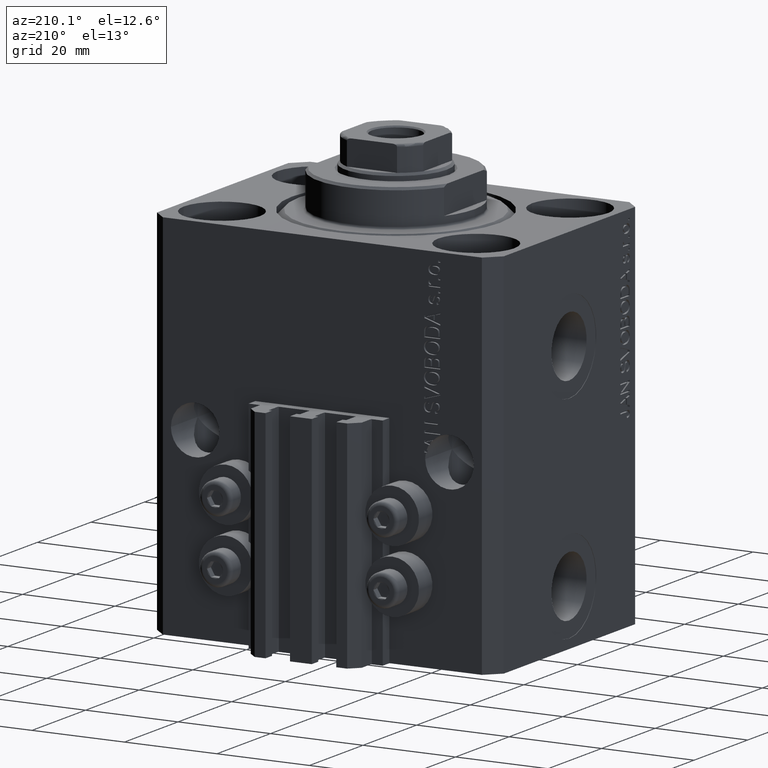
[diagram: clean part render]
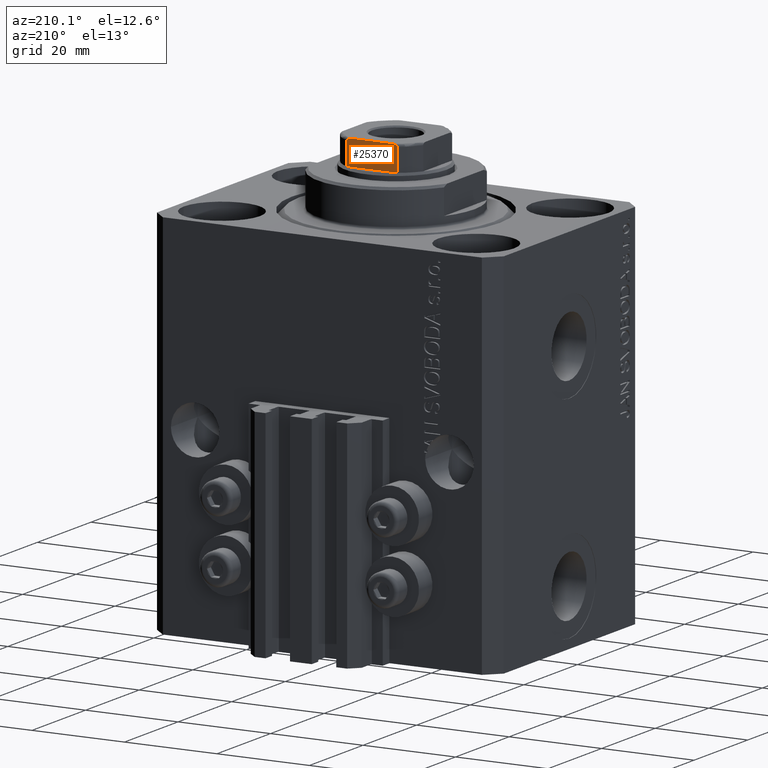
[diagram: same view with one face highlighted and labeled with its STEP entity id]
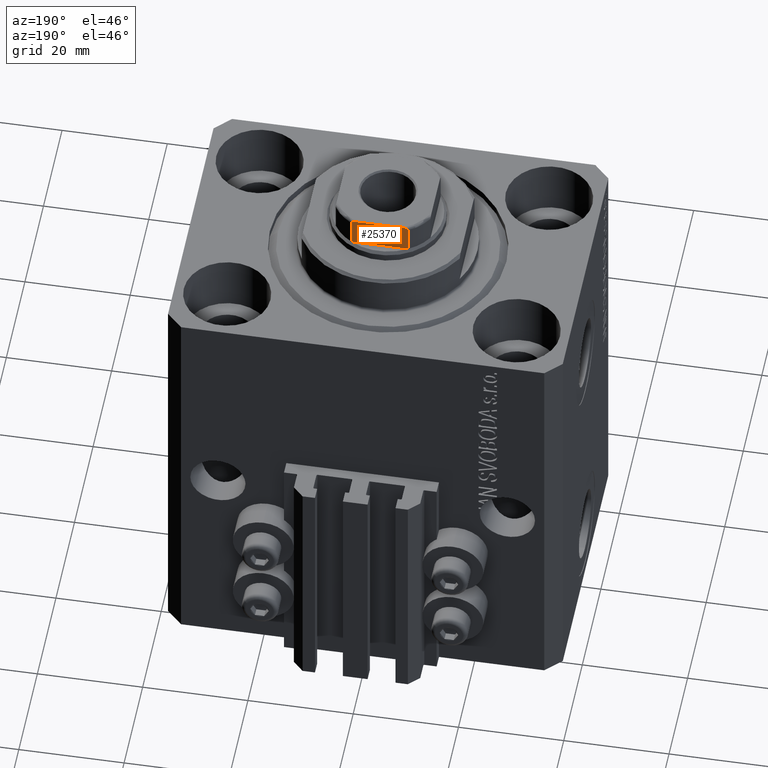
[diagram: same view with one face highlighted and labeled with its STEP entity id]
A machine part, auxiliary view. The second image highlights one B-rep face of the part: STEP entity #25370.
A second angle (auxiliary view) of the same face is appended — the face is thin or edge-on in the first view.
In plain terms, the highlighted planar face has unit normal (0, -1, 0).
Its self-contained STEP definition (entity closure, byte-faithful):
#1358 = DIRECTION ( 'NONE',  ( -1.000000000000000000, -0.000000000000000000, -0.000000000000000000 ) ) ;
#1364 = PLANE ( 'NONE',  #28104 ) ;
#1536 = CARTESIAN_POINT ( 'NONE',  ( 4.358898943540677529, 8.999999999999998224, 85.00000000000000000 ) ) ;
#1599 = LINE ( 'NONE', #22920, #23425 ) ;
#3083 = VERTEX_POINT ( 'NONE', #46762 ) ;
#5180 = B_SPLINE_CURVE_WITH_KNOTS ( 'NONE', 3,
 ( #1536, #12081, #30299, #24708, #39304, #37711, #41303, #12556, #41546, #8957 ),
 .UNSPECIFIED., .F., .F.,
 ( 4, 2, 2, 2, 4 ),
 ( 8.673617379884035472E-19, 0.0006221106941440978245, 0.0009331660412161529167, 0.001088693714752179487, 0.001244221388288205840 ),
 .UNSPECIFIED. ) ;
#6763 = VERTEX_POINT ( 'NONE', #38932 ) ;
#7410 = CARTESIAN_POINT ( 'NONE',  ( -4.778533838065926354, 9.000000000000000000, 84.97782914764695761 ) ) ;
#7645 = CARTESIAN_POINT ( 'NONE',  ( -5.077896145217240864, 8.999999999999998224, 84.87730167760669531 ) ) ;
#8120 = CARTESIAN_POINT ( 'NONE',  ( -4.569278586016991106, 8.999999999999996447, 84.99999999999998579 ) ) ;
#8764 = EDGE_CURVE ( 'NONE', #18246, #6763, #1599, .T. ) ;
#8957 = CARTESIAN_POINT ( 'NONE',  ( 5.408326913195989682, 8.999999999999998224, 84.50000000000000000 ) ) ;
#10267 = CARTESIAN_POINT ( 'NONE',  ( 5.408326913195989682, 8.999999999999998224, 79.50000000000000000 ) ) ;
#11244 = CARTESIAN_POINT ( 'NONE',  ( -5.174818616237127245, 8.999999999999998224, 84.83252188465333177 ) ) ;
#11594 = ORIENTED_EDGE ( 'NONE', *, *, #21219, .T. ) ;
#11718 = CARTESIAN_POINT ( 'NONE',  ( -5.390954572107325760, 8.999999999999996447, 84.60536285214003271 ) ) ;
#12081 = CARTESIAN_POINT ( 'NONE',  ( 4.569272810556668674, 9.000000000000001776, 85.00000000000002842 ) ) ;
#12556 = CARTESIAN_POINT ( 'NONE',  ( 5.390945448132526963, 9.000000000000001776, 84.60548165389704423 ) ) ;
#14312 = ORIENTED_EDGE ( 'NONE', *, *, #44716, .F. ) ;
#15554 = CARTESIAN_POINT ( 'NONE',  ( 5.408326913195989682, 8.999999999999998224, 84.50000000000000000 ) ) ;
#15969 = CARTESIAN_POINT ( 'NONE',  ( -9.000000000000000000, 8.999999999999998224, 85.00000000000000000 ) ) ;
#16467 = EDGE_CURVE ( 'NONE', #3083, #6763, #24428, .T. ) ;
#17215 = LINE ( 'NONE', #45727, #39185 ) ;
#17653 = VERTEX_POINT ( 'NONE', #10267 ) ;
#18246 = VERTEX_POINT ( 'NONE', #44552 ) ;
#18431 = CARTESIAN_POINT ( 'NONE',  ( -5.335664150027724872, 8.999999999999998224, 84.69518433800131163 ) ) ;
#19580 = FACE_OUTER_BOUND ( 'NONE', #27163, .T. ) ;
#19816 = CARTESIAN_POINT ( 'NONE',  ( -9.000000000000000000, 8.999999999999998224, 79.50000000000000000 ) ) ;
#21219 = EDGE_CURVE ( 'NONE', #18246, #33609, #5180, .T. ) ;
#22920 = CARTESIAN_POINT ( 'NONE',  ( -9.000000000000000000, 8.999999999999998224, 85.00000000000000000 ) ) ;
#23425 = VECTOR ( 'NONE', #1358, 1000.000000000000000 ) ;
#23943 = DIRECTION ( 'NONE',  ( -0.000000000000000000, -0.000000000000000000, 1.000000000000000000 ) ) ;
#24428 = B_SPLINE_CURVE_WITH_KNOTS ( 'NONE', 3,
 ( #32813, #25628, #11718, #18431, #30171, #11244, #7645, #7410, #8120, #36869 ),
 .UNSPECIFIED., .F., .F.,
 ( 4, 2, 2, 2, 4 ),
 ( 0.000000000000000000, 0.0001582447020888034747, 0.0003164894041776069493, 0.0006329788083552379679, 0.001265957616710502390 ),
 .UNSPECIFIED. ) ;
#24708 = CARTESIAN_POINT ( 'NONE',  ( 5.074490744525481212, 8.999999999999998224, 84.87872007843324695 ) ) ;
#25341 = EDGE_CURVE ( 'NONE', #17653, #27255, #30366, .T. ) ;
#25370 = ADVANCED_FACE ( 'NONE', ( #19580 ), #1364, .F. ) ;
#25628 = CARTESIAN_POINT ( 'NONE',  ( -5.408326913195990571, 9.000000000000001776, 84.55357207273353026 ) ) ;
#26157 = ORIENTED_EDGE ( 'NONE', *, *, #25341, .T. ) ;
#26776 = DIRECTION ( 'NONE',  ( -1.000000000000000000, -0.000000000000000000, -0.000000000000000000 ) ) ;
#27163 = EDGE_LOOP ( 'NONE', ( #42407, #11594, #14312, #26157, #41132, #45124 ) ) ;
#27255 = VERTEX_POINT ( 'NONE', #44495 ) ;
#27486 = DIRECTION ( 'NONE',  ( -0.000000000000000000, -0.000000000000000000, 1.000000000000000000 ) ) ;
#27728 = LINE ( 'NONE', #38001, #40003 ) ;
#28104 = AXIS2_PLACEMENT_3D ( 'NONE', #15969, #30601, #45198 ) ;
#30171 = CARTESIAN_POINT ( 'NONE',  ( -5.298186678102094760, 8.999999999999998224, 84.73387812150049569 ) ) ;
#30299 = CARTESIAN_POINT ( 'NONE',  ( 4.775913644518301915, 9.000000000000000000, 84.97814607430834144 ) ) ;
#30366 = LINE ( 'NONE', #19816, #44926 ) ;
#30601 = DIRECTION ( 'NONE',  ( 0.000000000000000000, -1.000000000000000000, 0.000000000000000000 ) ) ;
#32813 = CARTESIAN_POINT ( 'NONE',  ( -5.408326913195988794, 8.999999999999998224, 84.50000000000000000 ) ) ;
#33609 = VERTEX_POINT ( 'NONE', #15554 ) ;
#36869 = CARTESIAN_POINT ( 'NONE',  ( -4.358898943540678417, 8.999999999999998224, 85.00000000000000000 ) ) ;
#37711 = CARTESIAN_POINT ( 'NONE',  ( 5.297634495023396006, 9.000000000000000000, 84.73442280527802950 ) ) ;
#38001 = CARTESIAN_POINT ( 'NONE',  ( -5.408326913195988794, 8.999999999999998224, -0.001000000000001000089 ) ) ;
#38932 = CARTESIAN_POINT ( 'NONE',  ( -4.358898943540678417, 8.999999999999998224, 85.00000000000000000 ) ) ;
#39185 = VECTOR ( 'NONE', #23943, 1000.000000000000000 ) ;
#39304 = CARTESIAN_POINT ( 'NONE',  ( 5.173732970196573966, 9.000000000000000000, 84.83318086437988370 ) ) ;
#40003 = VECTOR ( 'NONE', #27486, 1000.000000000000000 ) ;
#41132 = ORIENTED_EDGE ( 'NONE', *, *, #46794, .T. ) ;
#41303 = CARTESIAN_POINT ( 'NONE',  ( 5.335288102212756733, 8.999999999999998224, 84.69569054027623167 ) ) ;
#41546 = CARTESIAN_POINT ( 'NONE',  ( 5.408326913195986130, 8.999999999999998224, 84.55374346731881019 ) ) ;
#42407 = ORIENTED_EDGE ( 'NONE', *, *, #8764, .F. ) ;
#44495 = CARTESIAN_POINT ( 'NONE',  ( -5.408326913195986130, 8.999999999999998224, 79.50000000000000000 ) ) ;
#44552 = CARTESIAN_POINT ( 'NONE',  ( 4.358898943540677529, 8.999999999999998224, 85.00000000000000000 ) ) ;
#44716 = EDGE_CURVE ( 'NONE', #17653, #33609, #17215, .T. ) ;
#44926 = VECTOR ( 'NONE', #26776, 1000.000000000000000 ) ;
#45124 = ORIENTED_EDGE ( 'NONE', *, *, #16467, .T. ) ;
#45198 = DIRECTION ( 'NONE',  ( 0.000000000000000000, -0.000000000000000000, -1.000000000000000000 ) ) ;
#45727 = CARTESIAN_POINT ( 'NONE',  ( 5.408326913195989682, 8.999999999999998224, -0.001000000000001000089 ) ) ;
#46762 = CARTESIAN_POINT ( 'NONE',  ( -5.408326913195988794, 8.999999999999998224, 84.50000000000000000 ) ) ;
#46794 = EDGE_CURVE ( 'NONE', #27255, #3083, #27728, .T. ) ;